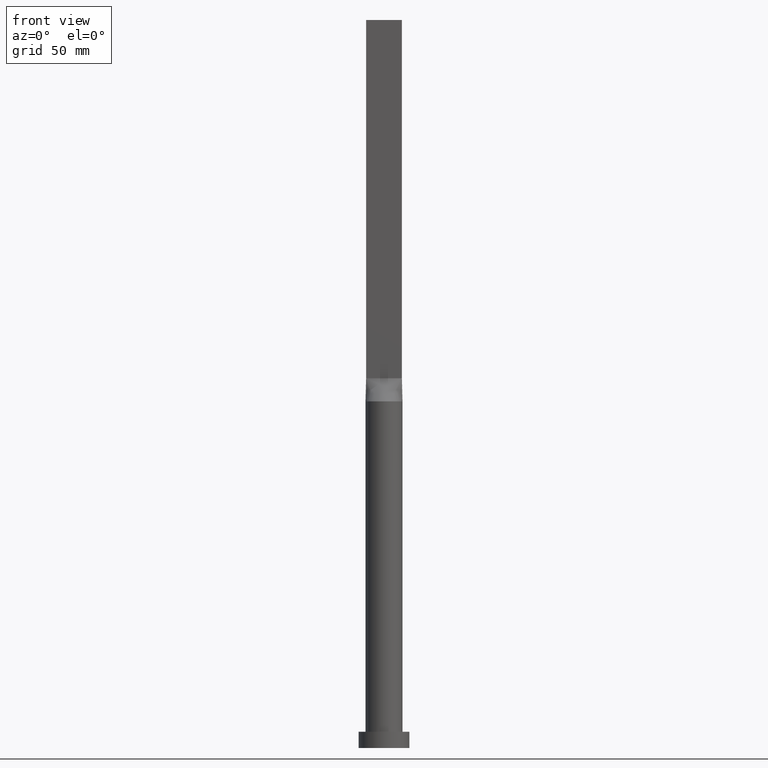
[diagram: clean part render]
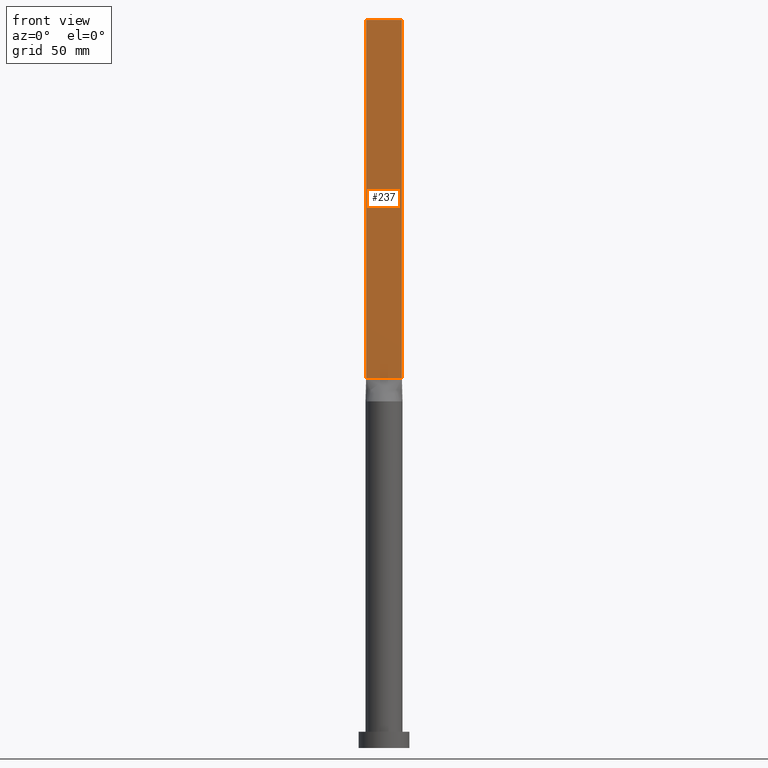
[diagram: same view with one face highlighted and labeled with its STEP entity id]
A machine part, front view. The second image highlights one B-rep face of the part: STEP entity #237.
In plain terms, the highlighted planar face has unit normal (0, 1, -0).
Its self-contained STEP definition (entity closure, byte-faithful):
#2 = LINE ( 'NONE', #356, #428 ) ;
#47 = DIRECTION ( 'NONE',  ( 6.994852725712932707E-17, 1.000000000000000000, -0.000000000000000000 ) ) ;
#61 = EDGE_CURVE ( 'NONE', #303, #280, #192, .T. ) ;
#64 = DIRECTION ( 'NONE',  ( 1.000000000000000000, -6.994852725712931474E-17, 0.000000000000000000 ) ) ;
#80 = VECTOR ( 'NONE', #555, 1000.000000000000000 ) ;
#99 = PLANE ( 'NONE',  #608 ) ;
#111 = CARTESIAN_POINT ( 'NONE',  ( -7.750000000000000000, -0.9999999999999986677, 315.0000000000000000 ) ) ;
#118 = CARTESIAN_POINT ( 'NONE',  ( 7.750000000000000000, -0.9999999999999997780, 315.0000000000000000 ) ) ;
#183 = LINE ( 'NONE', #565, #80 ) ;
#189 = VECTOR ( 'NONE', #560, 1000.000000000000000 ) ;
#190 = ORIENTED_EDGE ( 'NONE', *, *, #61, .T. ) ;
#192 = LINE ( 'NONE', #376, #189 ) ;
#203 = EDGE_CURVE ( 'NONE', #329, #631, #2, .T. ) ;
#206 = ORIENTED_EDGE ( 'NONE', *, *, #203, .F. ) ;
#237 = ADVANCED_FACE ( 'NONE', ( #538 ), #99, .F. ) ;
#280 = VERTEX_POINT ( 'NONE', #583 ) ;
#303 = VERTEX_POINT ( 'NONE', #609 ) ;
#305 = DIRECTION ( 'NONE',  ( -1.000000000000000000, 6.994852725712932707E-17, 0.000000000000000000 ) ) ;
#312 = DIRECTION ( 'NONE',  ( -0.000000000000000000, -0.000000000000000000, -1.000000000000000000 ) ) ;
#329 = VERTEX_POINT ( 'NONE', #118 ) ;
#346 = ORIENTED_EDGE ( 'NONE', *, *, #372, .F. ) ;
#355 = ORIENTED_EDGE ( 'NONE', *, *, #548, .T. ) ;
#356 = CARTESIAN_POINT ( 'NONE',  ( 7.750000000000000000, -0.9999999999999997780, 315.0000000000000000 ) ) ;
#372 = EDGE_CURVE ( 'NONE', #303, #329, #515, .T. ) ;
#376 = CARTESIAN_POINT ( 'NONE',  ( -7.750000000000000000, -0.9999999999999986677, 315.0000000000000000 ) ) ;
#378 = EDGE_LOOP ( 'NONE', ( #355, #206, #346, #190 ) ) ;
#428 = VECTOR ( 'NONE', #312, 1000.000000000000000 ) ;
#452 = VECTOR ( 'NONE', #64, 1000.000000000000000 ) ;
#456 = CARTESIAN_POINT ( 'NONE',  ( -7.750000000000000000, -0.9999999999999986677, 315.0000000000000000 ) ) ;
#515 = LINE ( 'NONE', #456, #452 ) ;
#538 = FACE_OUTER_BOUND ( 'NONE', #378, .T. ) ;
#548 = EDGE_CURVE ( 'NONE', #280, #631, #183, .T. ) ;
#555 = DIRECTION ( 'NONE',  ( 1.000000000000000000, -6.994852725712931474E-17, 0.000000000000000000 ) ) ;
#560 = DIRECTION ( 'NONE',  ( -0.000000000000000000, -0.000000000000000000, -1.000000000000000000 ) ) ;
#565 = CARTESIAN_POINT ( 'NONE',  ( -7.750000000000000000, -0.9999999999999986677, 160.0000000000000000 ) ) ;
#582 = CARTESIAN_POINT ( 'NONE',  ( 7.750000000000000000, -0.9999999999999997780, 160.0000000000000000 ) ) ;
#583 = CARTESIAN_POINT ( 'NONE',  ( -7.750000000000000000, -0.9999999999999986677, 160.0000000000000000 ) ) ;
#608 = AXIS2_PLACEMENT_3D ( 'NONE', #111, #47, #305 ) ;
#609 = CARTESIAN_POINT ( 'NONE',  ( -7.750000000000000000, -0.9999999999999986677, 315.0000000000000000 ) ) ;
#631 = VERTEX_POINT ( 'NONE', #582 ) ;